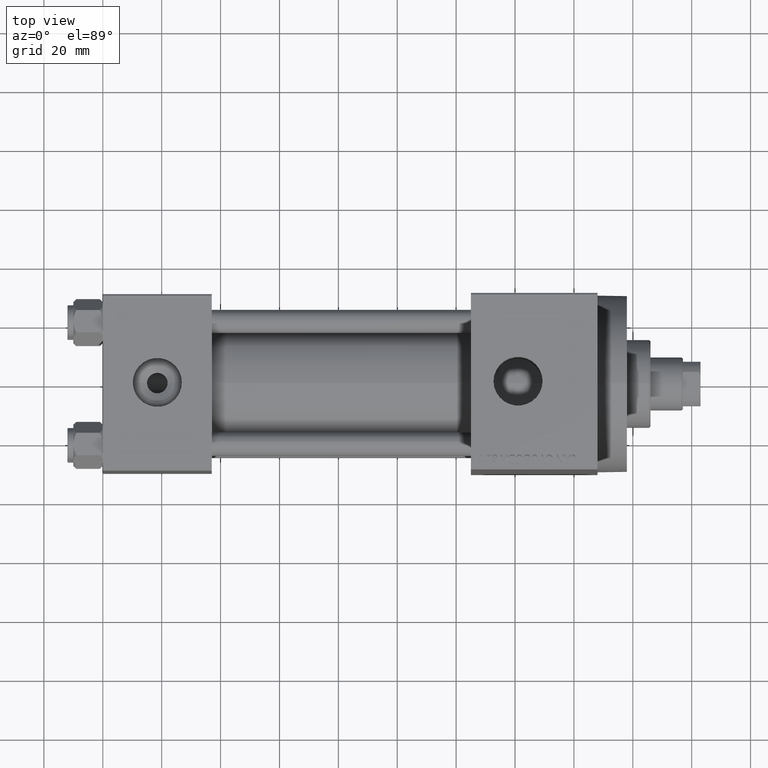
[diagram: clean part render]
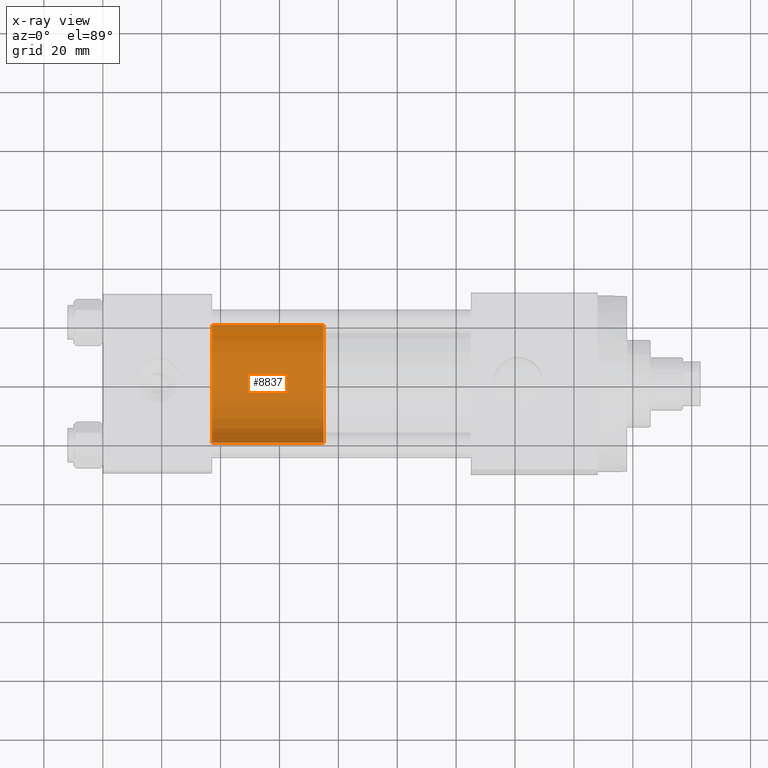
[diagram: x-ray — body ghosted, one internal face saturated and labeled with its STEP entity id]
A machine part, top view, then the same camera in x-ray: the body is ghosted and one INTERNAL B-rep face — a face not visible from any outside direction — is saturated and labeled: STEP entity #8837.
In plain terms, the highlighted cylindrical surface (partial cylindrical patch) has radius 20 mm, axis along (-1, 0, 0).
Its self-contained STEP definition (entity closure, byte-faithful):
#810 = VERTEX_POINT ( 'NONE', #31458 ) ;
#816 = CARTESIAN_POINT ( 'NONE',  ( -20.00000000000000000, 0.000000000000000000, 38.00000000000000000 ) ) ;
#938 = AXIS2_PLACEMENT_3D ( 'NONE', #27805, #20619, #38564 ) ;
#3858 = ORIENTED_EDGE ( 'NONE', *, *, #35609, .F. ) ;
#4343 = VERTEX_POINT ( 'NONE', #39261 ) ;
#5589 = EDGE_LOOP ( 'NONE', ( #38152, #16496, #28365, #3858 ) ) ;
#5985 = CARTESIAN_POINT ( 'NONE',  ( 20.00000000000000000, 2.449293598294706513E-15, 38.00000000000000000 ) ) ;
#7711 = EDGE_CURVE ( 'NONE', #20038, #4343, #39031, .T. ) ;
#8837 = ADVANCED_FACE ( 'NONE', ( #11624 ), #27057, .T. ) ;
#9399 = AXIS2_PLACEMENT_3D ( 'NONE', #14250, #18331, #40300 ) ;
#11624 = FACE_OUTER_BOUND ( 'NONE', #5589, .T. ) ;
#14250 = CARTESIAN_POINT ( 'NONE',  ( 0.000000000000000000, 0.000000000000000000, 38.00000000000000000 ) ) ;
#14318 = CARTESIAN_POINT ( 'NONE',  ( 20.00000000000000000, 2.449293598294706513E-15, 0.000000000000000000 ) ) ;
#14661 = AXIS2_PLACEMENT_3D ( 'NONE', #45923, #40774, #34701 ) ;
#15795 = VECTOR ( 'NONE', #39571, 1000.000000000000000 ) ;
#16496 = ORIENTED_EDGE ( 'NONE', *, *, #34154, .T. ) ;
#17796 = CIRCLE ( 'NONE', #9399, 20.00000000000000000 ) ;
#18331 = DIRECTION ( 'NONE',  ( 0.000000000000000000, 0.000000000000000000, 1.000000000000000000 ) ) ;
#20038 = VERTEX_POINT ( 'NONE', #14318 ) ;
#20619 = DIRECTION ( 'NONE',  ( 0.000000000000000000, 0.000000000000000000, 1.000000000000000000 ) ) ;
#21966 = VERTEX_POINT ( 'NONE', #816 ) ;
#22590 = VECTOR ( 'NONE', #42294, 1000.000000000000000 ) ;
#22783 = LINE ( 'NONE', #5985, #22590 ) ;
#27057 = CYLINDRICAL_SURFACE ( 'NONE', #14661, 20.00000000000000000 ) ;
#27095 = EDGE_CURVE ( 'NONE', #810, #21966, #17796, .T. ) ;
#27805 = CARTESIAN_POINT ( 'NONE',  ( 0.000000000000000000, 0.000000000000000000, 0.000000000000000000 ) ) ;
#28365 = ORIENTED_EDGE ( 'NONE', *, *, #7711, .T. ) ;
#31458 = CARTESIAN_POINT ( 'NONE',  ( 20.00000000000000000, 2.449293598294706513E-15, 38.00000000000000000 ) ) ;
#32166 = CARTESIAN_POINT ( 'NONE',  ( -20.00000000000000000, 0.000000000000000000, 38.00000000000000000 ) ) ;
#32409 = LINE ( 'NONE', #32166, #15795 ) ;
#34154 = EDGE_CURVE ( 'NONE', #810, #20038, #22783, .T. ) ;
#34701 = DIRECTION ( 'NONE',  ( -1.000000000000000000, 0.000000000000000000, 0.000000000000000000 ) ) ;
#35609 = EDGE_CURVE ( 'NONE', #21966, #4343, #32409, .T. ) ;
#38152 = ORIENTED_EDGE ( 'NONE', *, *, #27095, .F. ) ;
#38564 = DIRECTION ( 'NONE',  ( 1.000000000000000000, 0.000000000000000000, 0.000000000000000000 ) ) ;
#39031 = CIRCLE ( 'NONE', #938, 20.00000000000000000 ) ;
#39261 = CARTESIAN_POINT ( 'NONE',  ( -20.00000000000000000, 0.000000000000000000, 0.000000000000000000 ) ) ;
#39571 = DIRECTION ( 'NONE',  ( -0.000000000000000000, -0.000000000000000000, -1.000000000000000000 ) ) ;
#40300 = DIRECTION ( 'NONE',  ( 1.000000000000000000, 0.000000000000000000, 0.000000000000000000 ) ) ;
#40774 = DIRECTION ( 'NONE',  ( -0.000000000000000000, -0.000000000000000000, -1.000000000000000000 ) ) ;
#42294 = DIRECTION ( 'NONE',  ( -0.000000000000000000, -0.000000000000000000, -1.000000000000000000 ) ) ;
#45923 = CARTESIAN_POINT ( 'NONE',  ( 0.000000000000000000, 0.000000000000000000, 38.00000000000000000 ) ) ;